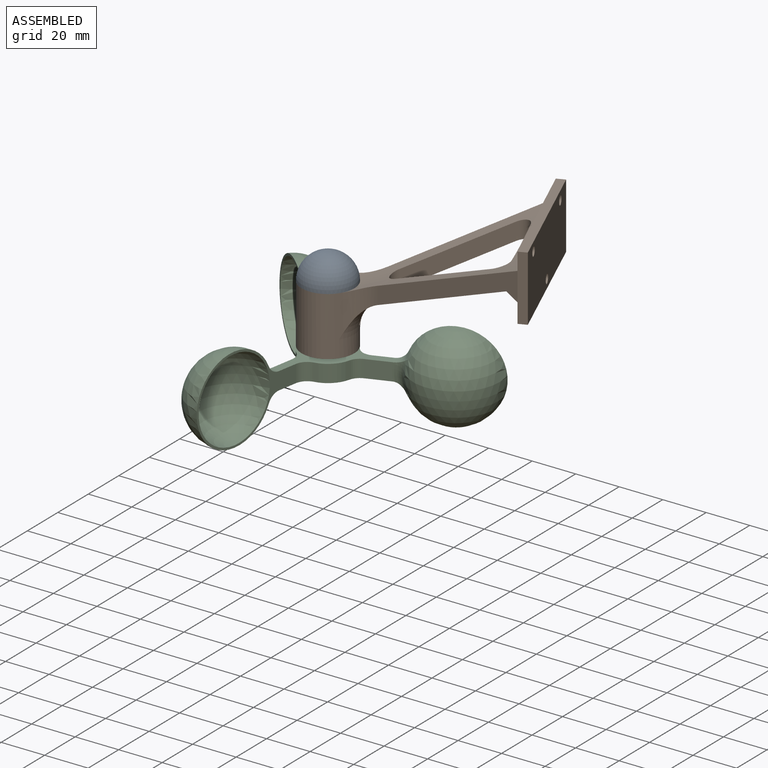
[diagram: assembled view]
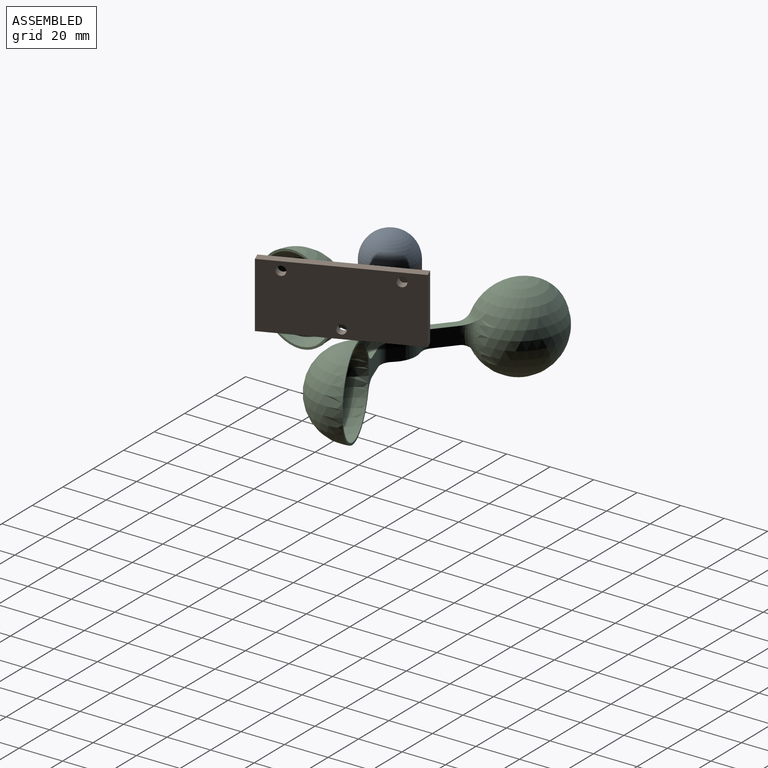
[diagram: assembled view, second angle]
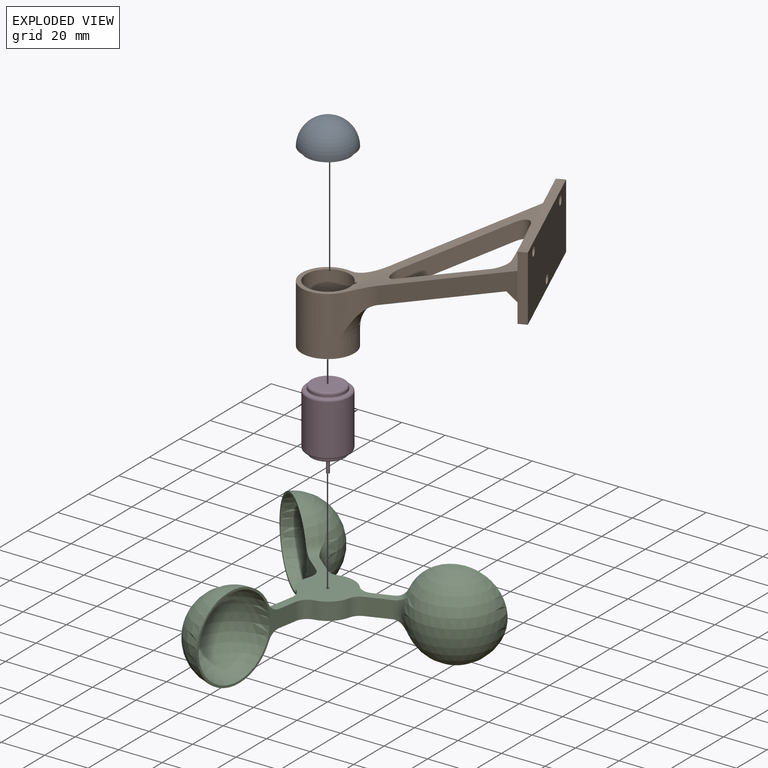
[diagram: exploded view]
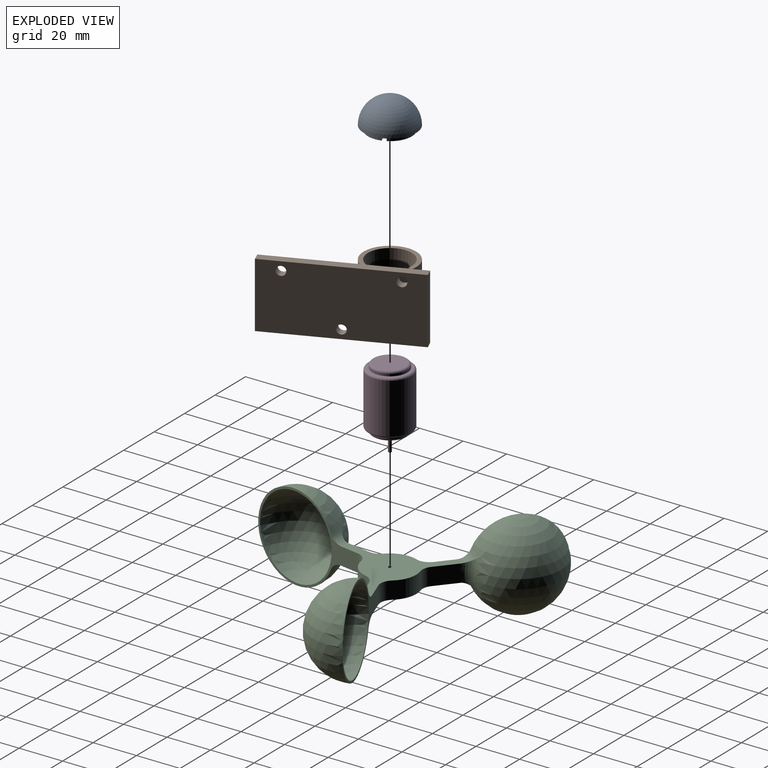
[diagram: exploded view, second angle]
ASSEMBLY  parts=4 mates=4
PART A: 9 faces, bbox 24.2x24.2x14.1 mm
  f0: cylinder r=10.1mm len=20.2mm, axis (0,0,1), area 122.9mm2, adj f3,f4,f6,f7
  f1: cylinder r=8mm len=16mm, axis (0,0,1), area 96.5mm2, adj f4,f5,f6,f7
  f2: sphere r=12.1mm, area 919.9mm2, adj f3
  f3: plane 24.2x24.2mm, normal (0,0,-1), area 140.1mm2, adj f0,f2,f6,f7,f8
  f4: plane 20.2x20.15mm, normal (0,0,-1), area 115.2mm2, adj f0,f1,f6,f7
  f5: sphere r=8mm, area 398.9mm2, adj f1,f6,f7,f8
  f6: plane 3.61x2.29mm, normal (1,0,0), area 4.8mm2, adj f0,f1,f3,f4,f5,f8
  f7: plane 3.61x2.29mm, normal (-1,0,0), area 4.8mm2, adj f0,f1,f3,f4,f5,f8
  f8: torus R=9.8mm, axis (0,0,-1), area 5.5mm2, adj f3,f5,f6,f7
PART B: 34 faces, bbox 106.9x139.3x66.3 mm
  f0: cylinder r=10.1mm len=27mm, axis (0,0,-1), area 1679.4mm2, adj f1,f5,f27,f29,f30
  f1: plane 24.2x24.2mm, normal (0,0,1), area 137.5mm2, adj f0,f3,f4,f27,f29,f31
  f2: cone r=12.1mm half-angle=70deg, axis (0,0,1), area 846.4mm2, adj f6,f7,f8,f9,f10,f21,f22,f23
  f3: cone r=12.1mm half-angle=70deg, axis (0,0,1), area 1514.8mm2, adj f1,f6,f7,f8,f9,f10,f11,f21
  f4: cylinder r=12.1mm len=27mm, axis (0,0,-1), area 1588.7mm2, adj f1,f5,f24,f25,f26
  f5: plane 24.2x24.2mm, normal (0,0,-1), area 139.5mm2, adj f0,f4
  f6: plane 45.26x45.26mm, normal (-0.71,0.71,0), area 525mm2, adj f2,f3,f12,f24,f33
  f7: plane 64.01x31.3mm, normal (0,-1,0), area 525mm2, adj f2,f3,f14,f25,f33
  f8: plane 35.19x16.93mm, normal (-0.92,-0.38,0), area 269.9mm2, adj f2,f3,f21,f23
  f9: plane 34.18x34.18mm, normal (0.71,-0.71,0), area 352.6mm2, adj f2,f3,f21,f22
  f10: plane 47.09x26.9mm, normal (0,1,0), area 352.6mm2, adj f2,f3,f22,f23
  f11: plane 61.59x25.51mm, normal (-0.92,-0.38,0), area 612mm2, adj f3,f12,f13,f14,f15,f18
  f12: plane 30x3.7mm, normal (-0.38,0.92,0), area 120mm2, adj f6,f11,f13,f16,f19,f20
  f13: plane 63.12x29.21mm, normal (0,0,1), area 266.7mm2, adj f11,f12,f14,f19
  f14: plane 30x3.7mm, normal (0.38,-0.92,0), area 120mm2, adj f7,f11,f13,f16,f19,f20
  f15: cylinder r=2.1mm len=5.41mm, axis (-0.92,-0.38,0), area 52.8mm2, adj f11,f19
  f16: plane 63.12x29.21mm, normal (0,0,-1), area 266.7mm2, adj f12,f14,f19,f20
  f17: cylinder r=2.1mm len=5.41mm, axis (-0.92,-0.38,0), area 52.8mm2, adj f19,f20
  f18: cylinder r=2.1mm len=5.41mm, axis (-0.92,-0.38,0), area 52.8mm2, adj f11,f19
  f19: plane 61.59x30mm, normal (0.92,0.38,0), area 1958.3mm2, adj f12,f13,f14,f15,f16,f17,f18
  f20: plane 62.49x26.41mm, normal (-0.92,-0.38,0), area 472.5mm2, adj f12,f14,f16,f17,f33
  f21: cylinder r=5mm len=9.99mm, axis (0,0,-1), area 78.5mm2, adj f2,f3,f8,f9
  f22: cylinder r=5mm len=8.54mm, axis (0,0,-1), area 94.2mm2, adj f2,f3,f9,f10
  f23: cylinder r=5mm len=9.99mm, axis (0,0,1), area 78.5mm2, adj f2,f3,f8,f10
  f24: cylinder r=16mm len=23.21mm, axis (0,0,-1), area 176.9mm2, adj f2,f3,f4,f6,f26
  f25: cylinder r=16mm len=23.21mm, axis (0,0,-1), area 176.9mm2, adj f2,f3,f4,f7,f26
  f26: torus R=28.1mm, axis (0,0,-1), area 319.7mm2, adj f2,f4,f24,f25,f27,f28,f29,f30
  f27: plane 17.09x9.94mm, normal (0.38,-0.92,0), area 67.7mm2, adj f0,f1,f26,f28,f30,f31,f32
  f28: plane 5.98x4.01mm, normal (0,0,-1), area 11.3mm2, adj f26,f27,f29,f32
  f29: plane 17.09x9.94mm, normal (-0.38,0.92,0), area 67.7mm2, adj f0,f1,f26,f28,f30,f31,f32
  f30: plane 2.76x2.68mm, normal (0,0,1), area 4.3mm2, adj f0,f26,f27,f29
  f31: cylinder r=11.1mm len=1.85mm, axis (0,0,-1), area 2mm2, adj f1,f27,f29,f32
  f32: torus R=15.1mm, axis (0,0,-1), area 12.2mm2, adj f27,f28,f29,f31
  f33: bspline ~62.95x29.7mm, area 382.1mm2, adj f2,f6,f7,f20
PART C: 33 faces, bbox 115x123.9x40 mm
  f0: sphere r=20mm, area 2388.4mm2, adj f2,f30,f31,f32
  f1: sphere r=19mm, area 2268.2mm2, adj f2
  f2: plane 52.92x40mm, normal (0,-1,0), area 233.7mm2, adj f0,f1,f3,f4,f18,f30,f32
  f3: plane 47.32x42.97mm, normal (0,0,1), area 647.9mm2, adj f2,f5,f6,f7,f10,f11,f12,f15
  f4: plane 47.32x42.97mm, normal (0,0,-1), area 647.9mm2, adj f2,f5,f6,f7,f10,f11,f12,f15
  f5: plane 11.25x8mm, normal (0,1,0), area 88.2mm2, adj f3,f4,f19,f31
  f6: cylinder r=12.1mm len=10.67mm, axis (0,0,-1), area 113.4mm2, adj f3,f4,f18,f23
  f7: cylinder r=12.1mm len=12.32mm, axis (0,0,-1), area 113.4mm2, adj f3,f4,f19,f20
  f8: sphere r=20mm, area 2388.4mm2, adj f10,f27,f28,f29
  f9: sphere r=19mm, area 2268.2mm2, adj f10
  f10: plane 45.83x40mm, normal (-0.87,0.5,0), area 233.7mm2, adj f3,f4,f8,f9,f20,f27,f28
  f11: plane 9.74x8mm, normal (0.87,-0.5,0), area 88.2mm2, adj f3,f4,f21,f29
  f12: cylinder r=12.1mm len=13.27mm, axis (0,0,-1), area 113.4mm2, adj f3,f4,f21,f22
  f13: sphere r=20mm, area 2388.4mm2, adj f15,f24,f25,f26
  f14: sphere r=19mm, area 2268.2mm2, adj f15
  f15: plane 45.83x40mm, normal (0.87,0.5,0), area 233.7mm2, adj f3,f4,f13,f14,f22,f24,f25
  f16: plane 9.74x8mm, normal (-0.87,-0.5,0), area 88.2mm2, adj f3,f4,f23,f26
  f17: cylinder r=0.75mm len=8mm, axis (0,0,-1), area 37.7mm2, adj f3,f4
  f18: cylinder r=6mm len=8mm, axis (0,0,-1), area 59.2mm2, adj f2,f3,f4,f6
  f19: cylinder r=6mm len=8mm, axis (0,0,-1), area 47.3mm2, adj f3,f4,f5,f7
  f20: cylinder r=6mm len=8mm, axis (0,0,-1), area 59.2mm2, adj f3,f4,f7,f10
  f21: cylinder r=6mm len=8mm, axis (0,0,-1), area 47.3mm2, adj f3,f4,f11,f12
  f22: cylinder r=6mm len=8mm, axis (0,0,-1), area 59.2mm2, adj f3,f4,f12,f15
  f23: cylinder r=6mm len=8mm, axis (0,0,-1), area 47.3mm2, adj f3,f4,f6,f16
  f24: torus R=24mm, axis (0,0,-1), area 37.9mm2, adj f4,f13,f15,f26
  f25: torus R=24mm, axis (0,0,-1), area 37.9mm2, adj f3,f13,f15,f26
  f26: torus R=24mm, axis (0.87,0.5,0), area 75.7mm2, adj f13,f16,f24,f25
  f27: torus R=24mm, axis (0,0,-1), area 37.9mm2, adj f4,f8,f10,f29
  f28: torus R=24mm, axis (0,0,-1), area 37.9mm2, adj f3,f8,f10,f29
  f29: torus R=24mm, axis (-0.87,0.5,0), area 75.7mm2, adj f8,f11,f27,f28
  f30: torus R=24mm, axis (0,0,-1), area 37.9mm2, adj f0,f2,f3,f31
  f31: torus R=24mm, axis (0,-1,0), area 75.7mm2, adj f0,f5,f30,f32
  f32: torus R=24mm, axis (0,0,-1), area 37.9mm2, adj f0,f2,f4,f31
PART D: 13 faces, bbox 21.6x21.6x37 mm
  f0: cylinder r=10mm len=23mm, axis (0,0,-1), area 1445.1mm2, adj f11,f12
  f1: plane 18x18mm, normal (0,0,1), area 53.4mm2, adj f3,f12
  f2: plane 18x18mm, normal (0,0,-1), area 53.4mm2, adj f7,f11
  f3: cylinder r=8mm len=16mm, axis (0,0,-1), area 50.3mm2, adj f1,f10
  f4: plane 14x14mm, normal (0,0,1), area 152.2mm2, adj f5,f10
  f5: cylinder r=0.75mm len=8mm, axis (0,0,-1), area 37.7mm2, adj f4,f6
  f6: plane 1.5x1.5mm, normal (0,0,1), area 1.8mm2, adj f5
  f7: cylinder r=8mm len=16mm, axis (0,0,1), area 50.3mm2, adj f2,f9
  f8: plane 14x14mm, normal (0,0,-1), area 153.9mm2, adj f9
  f9: torus R=7mm, axis (0,0,-1), area 75.4mm2, adj f7,f8
  f10: torus R=7mm, axis (0,0,1), area 75.4mm2, adj f3,f4
  f11: torus R=9mm, axis (0,0,1), area 95.1mm2, adj f0,f2
  f12: torus R=9mm, axis (0,0,1), area 95.1mm2, adj f0,f1
PLACE A rot(axis=(0,0,1),112.5deg) t=(55.5,-64.71,34.76)mm
PLACE B t=(55.5,-64.71,7.76)mm fixed
PLACE C rot(axis=(0,0,-1),159.9deg) t=(55.5,-64.71,1.76)mm
PLACE D rot(axis=(0,1,0),180deg) t=(55.5,-64.71,32.76)mm
MATE fastened D.f7 <-> B.f0  axis (0,0,1) through (55.5,-64.71,34.76)mm
MATE planar B.f29 <-> A.f6  axis (-0.38,0.92,0) through (65.63,-61.6,34.76)mm
MATE revolute B.f0 <-> A.f0  axis (0,0,1) through (55.5,-64.71,34.76)mm
MATE revolute D.f5 <-> C.f17  axis (0,0,-1) through (55.5,-64.71,-2.24)mm
